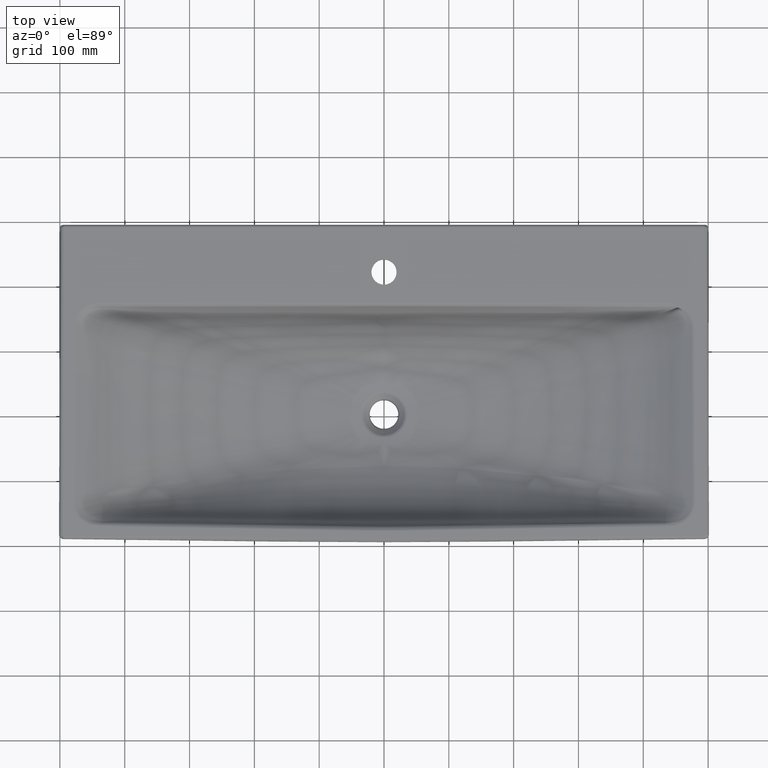
[diagram: clean part render]
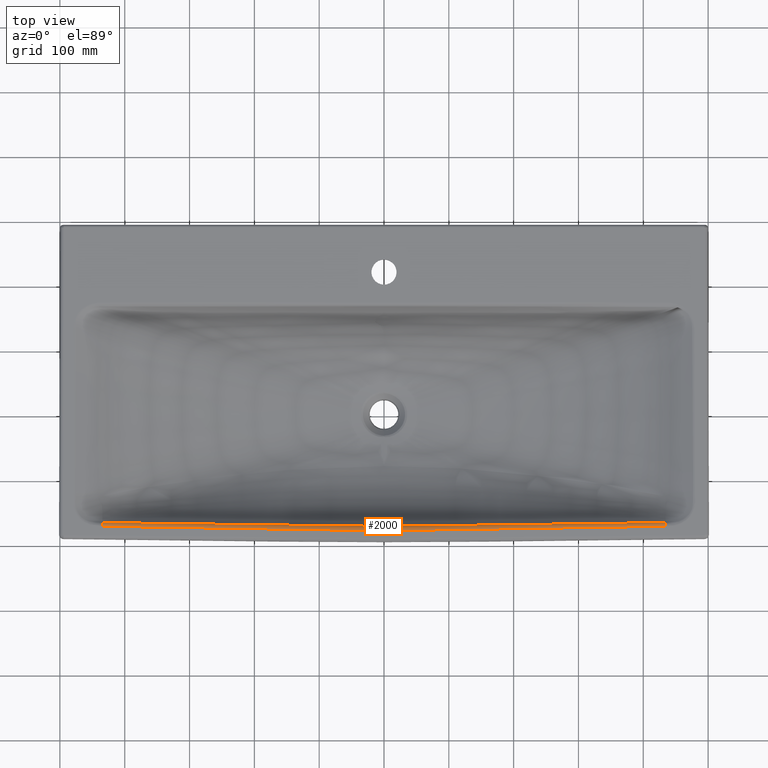
[diagram: same view with one face highlighted and labeled with its STEP entity id]
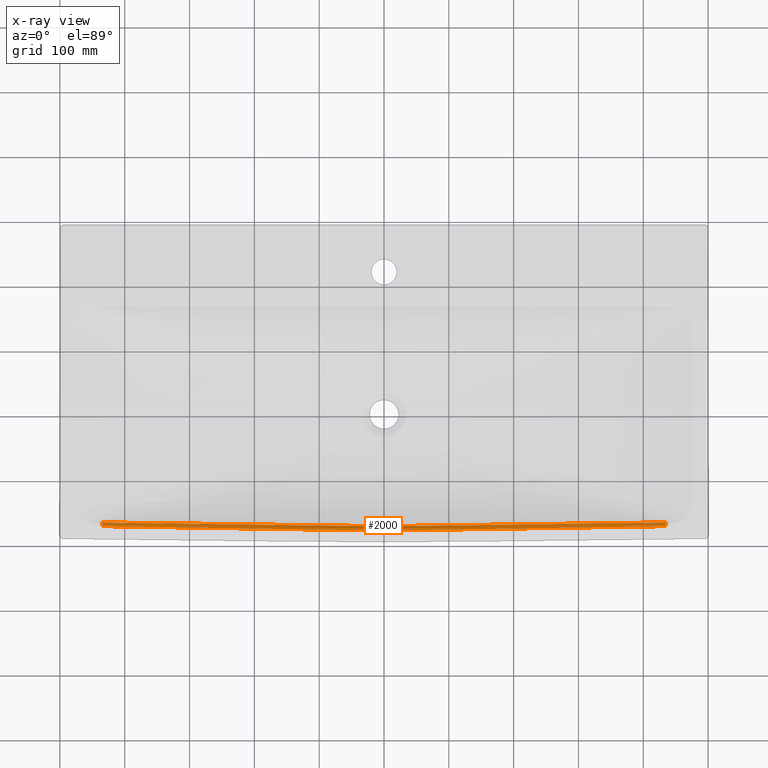
[diagram: x-ray of the same camera — body ghosted, the highlighted face saturated]
A machine part, top view. The second image highlights one B-rep face of the part: STEP entity #2000.
The next image is the same camera in x-ray: the body ghosted, the highlighted face saturated — about 0% of this face is hidden behind the body in this view.
In plain terms, the highlighted face is a freeform B-spline surface patch.
Its self-contained STEP definition (entity closure, byte-faithful):
#609=(
BOUNDED_SURFACE()
B_SPLINE_SURFACE(3,2,((#56130,#56131,#56132),(#56133,#56134,#56135),(#56136,
#56137,#56138),(#56139,#56140,#56141),(#56142,#56143,#56144),(#56145,#56146,
#56147),(#56148,#56149,#56150),(#56151,#56152,#56153),(#56154,#56155,#56156),
(#56157,#56158,#56159),(#56160,#56161,#56162),(#56163,#56164,#56165),(#56166,
#56167,#56168),(#56169,#56170,#56171),(#56172,#56173,#56174),(#56175,#56176,
#56177),(#56178,#56179,#56180),(#56181,#56182,#56183),(#56184,#56185,#56186),
(#56187,#56188,#56189),(#56190,#56191,#56192),(#56193,#56194,#56195),(#56196,
#56197,#56198),(#56199,#56200,#56201),(#56202,#56203,#56204),(#56205,#56206,
#56207),(#56208,#56209,#56210),(#56211,#56212,#56213),(#56214,#56215,#56216),
(#56217,#56218,#56219),(#56220,#56221,#56222),(#56223,#56224,#56225),(#56226,
#56227,#56228),(#56229,#56230,#56231),(#56232,#56233,#56234),(#56235,#56236,
#56237),(#56238,#56239,#56240),(#56241,#56242,#56243),(#56244,#56245,#56246),
(#56247,#56248,#56249),(#56250,#56251,#56252),(#56253,#56254,#56255),(#56256,
#56257,#56258),(#56259,#56260,#56261),(#56262,#56263,#56264),(#56265,#56266,
#56267),(#56268,#56269,#56270),(#56271,#56272,#56273)),.UNSPECIFIED.,.F.,
 .F.,.F.)
B_SPLINE_SURFACE_WITH_KNOTS((4,2,2,2,2,2,2,2,2,2,2,2,2,2,2,2,2,2,2,2,2,
2,2,4),(3,3),(0.,0.03125,0.0625,0.125,0.1875,0.25,0.28125,0.3125,0.34375,
0.375,0.4375,0.46875,0.5,0.53125,0.5625,0.625,0.65625,0.6875,0.75,0.8125,
0.875,0.9375,0.96875,1.),(0.,1.),.UNSPECIFIED.)
GEOMETRIC_REPRESENTATION_ITEM()
RATIONAL_B_SPLINE_SURFACE(((1.,0.890432301567966,1.),(1.,0.880643005815677,
1.),(1.,0.875322452073118,1.),(1.,0.867250946969685,1.),(1.,0.863980801542837,
1.),(1.,0.855999468461332,1.),(1.,0.852510346992299,1.),(1.,0.847690863164674,
1.),(1.,0.846214014404986,1.),(1.,0.84554296875545,1.),(1.,0.843748316364235,
1.),(1.,0.843030582620567,1.),(1.,0.843204288387233,1.),(1.,0.843831042307123,
1.),(1.,0.843845231972711,1.),(1.,0.839134985131365,1.),(1.,0.835499646547122,
1.),(1.,0.828646259172737,1.),(1.,0.825962380188353,1.),(1.,0.818402745898579,
1.),(1.,0.814198471873288,1.),(1.,0.809547982457156,1.),(1.,0.80826528384827,
1.),(1.,0.806259457350265,1.),(1.,0.805066805108781,1.),(1.,0.805257263600571,
1.),(1.,0.806709001156034,1.),(1.,0.809135673789895,1.),(1.,0.810536060372827,
1.),(1.,0.81547135018499,1.),(1.,0.819743282569626,1.),(1.,0.826352528856699,
1.),(1.,0.828553552767957,1.),(1.,0.834241698010787,1.),(1.,0.83769170209422,
1.),(1.,0.842333210878162,1.),(1.,0.838331590312536,1.),(1.,0.838673165525766,
1.),(1.,0.84090957042753,1.),(1.,0.843097485170497,1.),(1.,0.84569650019002,
1.),(1.,0.85239558074894,1.),(1.,0.856592571289294,1.),(1.,0.864738128316028,
1.),(1.,0.867925457529748,1.),(1.,0.875671706290045,1.),(1.,0.880759766489022,
1.),(1.,0.890439859369877,1.)))
REPRESENTATION_ITEM('')
SURFACE()
);
#1030=FACE_OUTER_BOUND('',#2828,.T.);
#1244=B_SPLINE_CURVE_WITH_KNOTS('',3,(#9133,#9134,#9135,#9136,#9137,#9138,
#9139,#9140,#9141,#9142,#9143,#9144,#9145,#9146,#9147,#9148,#9149,#9150,
#9151,#9152,#9153,#9154,#9155,#9156,#9157,#9158),.UNSPECIFIED.,.F.,.F.,
(4,2,2,2,2,2,2,2,2,2,2,2,4),(0.,0.0624999999999999,0.125,0.25,0.3125,0.375,
0.5,0.625,0.6875,0.75,0.875,0.9375,1.),.UNSPECIFIED.);
#1487=B_SPLINE_CURVE_WITH_KNOTS('',3,(#48400,#48401,#48402,#48403,#48404,
#48405,#48406,#48407,#48408,#48409,#48410,#48411,#48412,#48413,#48414,#48415,
#48416,#48417,#48418,#48419,#48420,#48421,#48422,#48423,#48424,#48425),
 .UNSPECIFIED.,.F.,.F.,(4,2,2,2,2,2,2,2,2,2,2,2,4),(0.,0.0625,0.125,0.25,
0.3125,0.375,0.5,0.625,0.6875,0.75,0.875,0.9375,1.),.UNSPECIFIED.);
#1667=B_SPLINE_CURVE_WITH_KNOTS('',3,(#55641,#55642,#55643,#55644),
 .UNSPECIFIED.,.F.,.F.,(4,4),(0.,1.),.UNSPECIFIED.);
#1668=B_SPLINE_CURVE_WITH_KNOTS('',3,(#55892,#55893,#55894,#55895),
 .UNSPECIFIED.,.F.,.F.,(4,4),(0.,1.),.UNSPECIFIED.);
#2000=ADVANCED_FACE('',(#1030),#609,.T.);
#2828=EDGE_LOOP('',(#4305,#4306,#4307,#4308));
#4305=ORIENTED_EDGE('',*,*,#6404,.T.);
#4306=ORIENTED_EDGE('',*,*,#5666,.F.);
#4307=ORIENTED_EDGE('',*,*,#6406,.T.);
#4308=ORIENTED_EDGE('',*,*,#6177,.F.);
#5071=VERTEX_POINT('',#9132);
#5072=VERTEX_POINT('',#9159);
#5219=VERTEX_POINT('',#26377);
#5385=VERTEX_POINT('',#44786);
#5666=EDGE_CURVE('',#5071,#5072,#1244,.T.);
#6177=EDGE_CURVE('',#5219,#5385,#1487,.T.);
#6404=EDGE_CURVE('',#5219,#5072,#1667,.T.);
#6406=EDGE_CURVE('',#5071,#5385,#1668,.T.);
#9132=CARTESIAN_POINT('',(434.528710219105,-471.904825191904,-16.0541201455834));
#9133=CARTESIAN_POINT('',(434.528817333827,-471.90752077263,-16.0541436695592));
#9134=CARTESIAN_POINT('',(416.432216537064,-472.626573526337,-16.0604187478754));
#9135=CARTESIAN_POINT('',(398.329550251289,-473.110219972374,-16.0646394664681));
#9136=CARTESIAN_POINT('',(362.124615117848,-474.092937744055,-16.0732155145372));
#9137=CARTESIAN_POINT('',(344.021195345363,-474.547340789625,-16.0771810298399));
#9138=CARTESIAN_POINT('',(289.707329226355,-475.770567175636,-16.0878559647887));
#9139=CARTESIAN_POINT('',(253.492865349968,-476.409239010318,-16.0934295694514));
#9140=CARTESIAN_POINT('',(199.168364870047,-477.059373183349,-16.0991032044257));
#9141=CARTESIAN_POINT('',(181.058743652037,-477.162058657307,-16.0999993269812));
#9142=CARTESIAN_POINT('',(144.842241317263,-477.582256620695,-16.1036663390536));
#9143=CARTESIAN_POINT('',(126.734565131629,-477.850132238873,-16.1060040541575));
#9144=CARTESIAN_POINT('',(72.4100361368272,-478.412473152689,-16.1109115289657));
#9145=CARTESIAN_POINT('',(36.1938388307759,-478.725594349676,-16.1136440962545));
#9146=CARTESIAN_POINT('',(-36.2370466774056,-478.751790380723,-16.1138727055541));
#9147=CARTESIAN_POINT('',(-72.4517543853825,-478.472621083912,-16.1114364320088));
#9148=CARTESIAN_POINT('',(-126.773306994642,-477.851498557035,-16.1060159778349));
#9149=CARTESIAN_POINT('',(-144.880267383602,-477.555465266748,-16.10343253445));
#9150=CARTESIAN_POINT('',(-181.094389092517,-477.043292396567,-16.0989628695259));
#9151=CARTESIAN_POINT('',(-199.202033239065,-476.913838846917,-16.0978331455131));
#9152=CARTESIAN_POINT('',(-253.521418921853,-476.224170744785,-16.0918145031663));
#9153=CARTESIAN_POINT('',(-289.732433585355,-475.655107288818,-16.0868483616218));
#9154=CARTESIAN_POINT('',(-344.044375081304,-474.539308957812,-16.077110937106));
#9155=CARTESIAN_POINT('',(-362.147540118526,-474.120696432908,-16.0734577609456));
#9156=CARTESIAN_POINT('',(-398.351879176899,-473.169498943612,-16.0651567862136));
#9157=CARTESIAN_POINT('',(-416.453974088863,-472.682298319997,-16.0609050507835));
#9158=CARTESIAN_POINT('',(-434.546574275883,-471.90672991941,-16.0541367678888));
#9159=CARTESIAN_POINT('',(-434.546453686631,-471.903917005705,-16.0541122199625));
#26377=CARTESIAN_POINT('',(-434.301531818038,-466.212619066801,-18.9012445321361));
#44786=CARTESIAN_POINT('',(434.301464109585,-466.212719037474,-18.9011527198859));
#48400=CARTESIAN_POINT('',(-434.30163398697,-466.213395619796,-18.9044384212594));
#48401=CARTESIAN_POINT('',(-416.213669920986,-466.644717848089,-19.3781816661315));
#48402=CARTESIAN_POINT('',(-398.120961177486,-467.087606194827,-19.4982144004464));
#48403=CARTESIAN_POINT('',(-361.934547224774,-467.894009832791,-19.7616890168593));
#48404=CARTESIAN_POINT('',(-343.840789528597,-468.27002100259,-19.84807868842));
#48405=CARTESIAN_POINT('',(-289.557696967412,-469.297855955043,-20.0288916332319));
#48406=CARTESIAN_POINT('',(-253.366680068602,-469.855941252943,-20.0585212206063));
#48407=CARTESIAN_POINT('',(-199.077465855656,-470.528906943952,-20.0980694539664));
#48408=CARTESIAN_POINT('',(-180.98013363582,-470.695605605244,-20.0194654638976));
#48409=CARTESIAN_POINT('',(-144.78634008999,-471.104153631742,-20.2447617264195));
#48410=CARTESIAN_POINT('',(-126.689557277306,-471.317149570914,-20.4401488597416));
#48411=CARTESIAN_POINT('',(-72.3986275013112,-471.802034882288,-20.7929822646835));
#48412=CARTESIAN_POINT('',(-36.2044193442446,-472.021451109137,-20.9882913930776));
#48413=CARTESIAN_POINT('',(36.1853967139591,-472.000348528976,-20.9701629980359));
#48414=CARTESIAN_POINT('',(72.3810177701146,-471.758856995444,-20.7471157818353));
#48415=CARTESIAN_POINT('',(126.674580075038,-471.316548692243,-20.438288199429));
#48416=CARTESIAN_POINT('',(144.772138932855,-471.124760650761,-20.2596143473593));
#48417=CARTESIAN_POINT('',(180.967829833661,-470.771063476024,-20.1112781307589));
#48418=CARTESIAN_POINT('',(199.066419188652,-470.625635930716,-20.2038571338095));
#48419=CARTESIAN_POINT('',(253.359072626909,-469.98155190322,-20.1864120072865));
#48420=CARTESIAN_POINT('',(289.552506608212,-469.378665431525,-20.0992627443645));
#48421=CARTESIAN_POINT('',(343.836736108198,-468.275990597106,-19.8508374260377));
#48422=CARTESIAN_POINT('',(361.930574180944,-467.873468423269,-19.747183021794));
#48423=CARTESIAN_POINT('',(398.117155974174,-467.039477823858,-19.4778913295234));
#48424=CARTESIAN_POINT('',(416.210039279983,-466.593345522242,-19.3708097063963));
#48425=CARTESIAN_POINT('',(434.301562270419,-466.213587362016,-18.9042522861384));
#55641=CARTESIAN_POINT('',(-434.303626780626,-466.213348100248,-18.9043862266441));
#55642=CARTESIAN_POINT('',(-434.358942961647,-467.51927079436,-17.1285552603139));
#55643=CARTESIAN_POINT('',(-434.452178321269,-469.703825153065,-16.0349123092369));
#55644=CARTESIAN_POINT('',(-434.546616537486,-471.906728107798,-16.0541367520788));
#55892=CARTESIAN_POINT('',(434.528866073243,-471.907518836011,-16.0541436526594));
#55893=CARTESIAN_POINT('',(434.441320695483,-469.704408765542,-16.0349174023459));
#55894=CARTESIAN_POINT('',(434.35489022705,-467.519646790622,-17.1284758137434));
#55895=CARTESIAN_POINT('',(434.303609096236,-466.213544397709,-18.9041994998262));
#56130=CARTESIAN_POINT('',(-434.546616537486,-471.906728107798,-16.0541367520786));
#56131=CARTESIAN_POINT('',(-434.393382177627,-468.332323193955,-16.0229433929648));
#56132=CARTESIAN_POINT('',(-434.303626780626,-466.213348100248,-18.9043862266445));
#56133=CARTESIAN_POINT('',(-425.500242354017,-472.294515678381,-16.057520922938));
#56134=CARTESIAN_POINT('',(-425.255045125011,-468.539350915116,-16.0247500969739));
#56135=CARTESIAN_POINT('',(-425.275780245789,-466.428622289101,-19.1408461478233));
#56136=CARTESIAN_POINT('',(-416.451499824519,-472.604760926657,-16.0602283922024));
#56137=CARTESIAN_POINT('',(-416.286277159697,-468.740686257676,-16.0265071273151));
#56138=CARTESIAN_POINT('',(-416.262289568281,-466.652626832021,-19.2819860516827));
#56139=CARTESIAN_POINT('',(-398.351509778992,-473.152530060268,-16.0650087010113));
#56140=CARTESIAN_POINT('',(-398.194378260312,-469.136491477797,-16.0299612593408));
#56141=CARTESIAN_POINT('',(-398.178528793416,-467.078801860169,-19.4826253769868));
#56142=CARTESIAN_POINT('',(-389.300831954585,-473.407297280182,-16.0672320208569));
#56143=CARTESIAN_POINT('',(-389.160199350282,-469.329945391882,-16.0316495082782));
#56144=CARTESIAN_POINT('',(-389.132508451964,-467.287876376611,-19.5635833413592));
#56145=CARTESIAN_POINT('',(-362.147574816148,-474.120695620107,-16.0734577538515));
#56146=CARTESIAN_POINT('',(-361.935307497974,-469.8964911007,-16.0365936829477));
#56147=CARTESIAN_POINT('',(-362.001487949979,-467.892587436394,-19.761353479402));
#56148=CARTESIAN_POINT('',(-344.044407884549,-474.539308220407,-16.0771109306706));
#56149=CARTESIAN_POINT('',(-343.896367533471,-470.249445161497,-16.0396738654921));
#56150=CARTESIAN_POINT('',(-343.903640326566,-468.268746047669,-19.8477810372595));
#56151=CARTESIAN_POINT('',(-307.836443095271,-475.283173979289,-16.0836025488024));
#56152=CARTESIAN_POINT('',(-307.703746067331,-470.904333423582,-16.0453889836041));
#56153=CARTESIAN_POINT('',(-307.71973194591,-468.954047564249,-19.9684832272652));
#56154=CARTESIAN_POINT('',(-289.731700721561,-475.611603197796,-16.0864687071704));
#56155=CARTESIAN_POINT('',(-289.650174460076,-471.204749196143,-16.0480106681361));
#56156=CARTESIAN_POINT('',(-289.625227012285,-469.265450453534,-20.0061453841438));
#56157=CARTESIAN_POINT('',(-253.520538174376,-476.172418289844,-16.0913628663337));
#56158=CARTESIAN_POINT('',(-253.450997502305,-471.753069273066,-16.0527957985371));
#56159=CARTESIAN_POINT('',(-253.431379441121,-469.818266257969,-20.0268637994802));
#56160=CARTESIAN_POINT('',(-235.414978453376,-476.454059799291,-16.0938207145514));
#56161=CARTESIAN_POINT('',(-235.338797545018,-472.001876698635,-16.0549670978492));
#56162=CARTESIAN_POINT('',(-235.321137918242,-470.079554568231,-20.0715909329621));
#56163=CARTESIAN_POINT('',(-208.255282766804,-476.798893947738,-16.0968300365746));
#56164=CARTESIAN_POINT('',(-208.200704877353,-472.333294823146,-16.0578593451105));
#56165=CARTESIAN_POINT('',(-208.181359471988,-470.416094521583,-20.0914753321618));
#56166=CARTESIAN_POINT('',(-199.201797151839,-476.899314908424,-16.0977063970224));
#56167=CARTESIAN_POINT('',(-199.158405693206,-472.436773340947,-16.0587623871614));
#56168=CARTESIAN_POINT('',(-199.135309358428,-470.518376646602,-20.0882676289927));
#56169=CARTESIAN_POINT('',(-181.094497664274,-477.08136620394,-16.0992951346095));
#56170=CARTESIAN_POINT('',(-181.054990652975,-472.630265951938,-16.060450970778));
#56171=CARTESIAN_POINT('',(-181.033446401543,-470.707413763516,-20.0751137824065));
#56172=CARTESIAN_POINT('',(-172.040873449447,-477.171335428564,-16.1000802841367));
#56173=CARTESIAN_POINT('',(-171.960012381716,-472.720877099062,-16.061241722835));
#56174=CARTESIAN_POINT('',(-171.961669487593,-470.797410811149,-20.0756401768181));
#56175=CARTESIAN_POINT('',(-153.933810703097,-477.427421843327,-16.1023151164214));
#56176=CARTESIAN_POINT('',(-153.83683248473,-472.891000620857,-16.0627263680208));
#56177=CARTESIAN_POINT('',(-153.83299018451,-471.002030279057,-20.1884116217533));
#56178=CARTESIAN_POINT('',(-144.880322786954,-477.572746598434,-16.1035833463461));
#56179=CARTESIAN_POINT('',(-144.767537262138,-472.970041679071,-16.0634161487713));
#56180=CARTESIAN_POINT('',(-144.774739290932,-471.108914436297,-20.2746644671417));
#56181=CARTESIAN_POINT('',(-126.773292186697,-477.841616744422,-16.105929740563));
#56182=CARTESIAN_POINT('',(-126.672991841211,-473.113790459149,-16.0646706258996));
#56183=CARTESIAN_POINT('',(-126.687002114823,-471.309555232881,-20.4360920249214));
#56184=CARTESIAN_POINT('',(-117.719723989108,-477.955018867942,-16.1069193859025));
#56185=CARTESIAN_POINT('',(-117.63372430443,-473.178173410113,-16.0652324857432));
#56186=CARTESIAN_POINT('',(-117.64008470602,-471.397973292142,-20.498961277355));
#56187=CARTESIAN_POINT('',(-90.5589448369512,-478.26558018264,-16.1096296134368));
#56188=CARTESIAN_POINT('',(-90.3988063545001,-473.351609407618,-16.066746042965));
#56189=CARTESIAN_POINT('',(-90.4938533097003,-471.640420657951,-20.6753816010858));
#56190=CARTESIAN_POINT('',(-72.4516511706594,-478.429850118136,-16.1110631754464));
#56191=CARTESIAN_POINT('',(-72.3419219383487,-473.438886463105,-16.067507698207));
#56192=CARTESIAN_POINT('',(-72.3976287293548,-471.770688033076,-20.772395699109));
#56193=CARTESIAN_POINT('',(-45.2905255342848,-478.602642882556,-16.1125711150567));
#56194=CARTESIAN_POINT('',(-45.2454320546102,-473.526832162296,-16.0682751845991));
#56195=CARTESIAN_POINT('',(-45.254154550684,-471.907299900664,-20.8792080038443));
#56196=CARTESIAN_POINT('',(-36.2367864220878,-478.648086030163,-16.1129676913972));
#56197=CARTESIAN_POINT('',(-36.2023192565942,-473.548873966778,-16.0684675422931));
#56198=CARTESIAN_POINT('',(-36.206438237359,-471.943099203426,-20.9085543021057));
#56199=CARTESIAN_POINT('',(-18.1292438538752,-478.713389503628,-16.1135375861764));
#56200=CARTESIAN_POINT('',(-18.1043121597922,-473.577637822009,-16.0687185598336));
#56201=CARTESIAN_POINT('',(-18.1114796322414,-471.993528841056,-20.9543345116543));
#56202=CARTESIAN_POINT('',(-9.0754623248788,-478.741966886441,-16.1137869772183));
#56203=CARTESIAN_POINT('',(-9.04965634635506,-473.584458372286,-16.0687780824691));
#56204=CARTESIAN_POINT('',(-9.04061828294493,-472.013479637159,-20.9814002156334));
#56205=CARTESIAN_POINT('',(9.03226095066595,-478.735417841617,-16.11372982457));
#56206=CARTESIAN_POINT('',(9.00059043965626,-473.581397646476,-16.0687513715525));
#56207=CARTESIAN_POINT('',(8.99258112565498,-472.008328374047,-20.9770612989891));
#56208=CARTESIAN_POINT('',(18.0862060948205,-478.698939487576,-16.1134114827975));
#56209=CARTESIAN_POINT('',(18.0544419003317,-473.571393277271,-16.0686640655514));
#56210=CARTESIAN_POINT('',(18.0625950722578,-471.982366556464,-20.9440918436731));
#56211=CARTESIAN_POINT('',(36.1941098127129,-478.620642395,-16.1127281944222));
#56212=CARTESIAN_POINT('',(36.1545366443932,-473.537290064128,-16.0683664500764));
#56213=CARTESIAN_POINT('',(36.1600779249388,-471.92220428682,-20.8886689593395));
#56214=CARTESIAN_POINT('',(45.2480881227543,-478.570977014825,-16.1122947712147));
#56215=CARTESIAN_POINT('',(45.1999391130687,-473.513159741761,-16.0681558691337));
#56216=CARTESIAN_POINT('',(45.208979155333,-471.883198506426,-20.8565902999479));
#56217=CARTESIAN_POINT('',(72.4101049182356,-478.389428525048,-16.1107104215468));
#56218=CARTESIAN_POINT('',(72.2958095931769,-473.421641901768,-16.067357203338));
#56219=CARTESIAN_POINT('',(72.3553049649377,-471.740546369846,-20.7431073353349));
#56220=CARTESIAN_POINT('',(90.5182251914775,-478.225026061401,-16.1092757029832));
#56221=CARTESIAN_POINT('',(90.3744551919846,-473.335287976513,-16.0666036098507));
#56222=CARTESIAN_POINT('',(90.4558412367957,-471.611595906992,-20.6443011637553));
#56223=CARTESIAN_POINT('',(117.680492534092,-477.94385555751,-16.1068219651691));
#56224=CARTESIAN_POINT('',(117.604892826024,-473.174001837188,-16.0651960800563));
#56225=CARTESIAN_POINT('',(117.610217620358,-471.390398784018,-20.4898488047503));
#56226=CARTESIAN_POINT('',(126.73467936212,-477.845095531914,-16.105960099482));
#56227=CARTESIAN_POINT('',(126.64889161479,-473.115416555275,-16.0646848142613));
#56228=CARTESIAN_POINT('',(126.659591113983,-471.31221475621,-20.4382150257547));
#56229=CARTESIAN_POINT('',(144.842631167876,-477.611377345594,-16.1039204717697));
#56230=CARTESIAN_POINT('',(144.745746237875,-472.985511506533,-16.063551154259));
#56231=CARTESIAN_POINT('',(144.75076668934,-471.134679035367,-20.3042455642002));
#56232=CARTESIAN_POINT('',(153.896386263043,-477.477206874283,-16.1027495838052));
#56233=CARTESIAN_POINT('',(153.819589228169,-472.91416654649,-16.0629285332275));
#56234=CARTESIAN_POINT('',(153.81205525037,-471.036421628942,-20.222550794675));
#56235=CARTESIAN_POINT('',(181.058765863048,-477.162058461443,-16.0999993252718));
#56236=CARTESIAN_POINT('',(180.954449475195,-472.684019633104,-16.0609200742712));
#56237=CARTESIAN_POINT('',(181.005056409512,-470.770705182104,-20.1111584039038));
#56238=CARTESIAN_POINT('',(199.168388977962,-477.059372971677,-16.0991032025786));
#56239=CARTESIAN_POINT('',(199.123279369459,-472.507712639462,-16.0593814620422));
#56240=CARTESIAN_POINT('',(199.110171990082,-470.625188406305,-20.2039137921124));
#56241=CARTESIAN_POINT('',(235.384726422244,-476.625949990604,-16.0953207775253));
#56242=CARTESIAN_POINT('',(235.31358883087,-472.080842454131,-16.0556562275473));
#56243=CARTESIAN_POINT('',(235.289845122766,-470.195838904348,-20.1921470907981));
#56244=CARTESIAN_POINT('',(253.491938880837,-476.334266166037,-16.0927752913512));
#56245=CARTESIAN_POINT('',(253.401182737439,-471.830375246283,-16.0534704322017));
#56246=CARTESIAN_POINT('',(253.396915152191,-469.928238013215,-20.1372389364191));
#56247=CARTESIAN_POINT('',(289.706065143914,-475.727484123269,-16.0874799846861));
#56248=CARTESIAN_POINT('',(289.599513998183,-471.263905487312,-16.0485269226091));
#56249=CARTESIAN_POINT('',(289.588004720102,-469.34602483088,-20.0805735789163));
#56250=CARTESIAN_POINT('',(307.811986749931,-475.362824321102,-16.0842976468043));
#56251=CARTESIAN_POINT('',(307.649481854661,-470.947974913318,-16.045769840965));
#56252=CARTESIAN_POINT('',(307.682152085298,-469.010442056921,-20.016334164512));
#56253=CARTESIAN_POINT('',(344.021234620779,-474.547339831801,-16.0771810214808));
#56254=CARTESIAN_POINT('',(343.844793464807,-470.255960121851,-16.0397307168635));
#56255=CARTESIAN_POINT('',(343.868263683684,-468.275306223563,-19.8506534852539));
#56256=CARTESIAN_POINT('',(362.124656288622,-474.092936708959,-16.073215505504));
#56257=CARTESIAN_POINT('',(361.903592767763,-469.87998242753,-16.036449612996));
#56258=CARTESIAN_POINT('',(361.968713321611,-467.872612504585,-19.7469746943577));
#56259=CARTESIAN_POINT('',(389.278360480346,-473.355898179451,-16.0667834677003));
#56260=CARTESIAN_POINT('',(389.135590601882,-469.292736102798,-16.0313247881994));
#56261=CARTESIAN_POINT('',(389.107359232736,-467.247114651219,-19.5449021694125));
#56262=CARTESIAN_POINT('',(398.329288269325,-473.098306045126,-16.0645354952004));
#56263=CARTESIAN_POINT('',(398.174352729111,-469.094837068656,-16.0295977492384));
#56264=CARTESIAN_POINT('',(398.156728519019,-467.034406347297,-19.4658337865372));
#56265=CARTESIAN_POINT('',(416.43062125602,-472.562839530783,-16.0598625497233));
#56266=CARTESIAN_POINT('',(416.272538118827,-468.705164882018,-16.0261971345705));
#56267=CARTESIAN_POINT('',(416.249592201857,-466.616019905396,-19.2730866628336));
#56268=CARTESIAN_POINT('',(425.480460293924,-472.267049573277,-16.05728122987));
#56269=CARTESIAN_POINT('',(425.244306786132,-468.513940749003,-16.024528340022));
#56270=CARTESIAN_POINT('',(425.268196503161,-466.403201825319,-19.1372225531059));
#56271=CARTESIAN_POINT('',(434.528866073243,-471.907518836011,-16.0541436526591));
#56272=CARTESIAN_POINT('',(434.386816782025,-468.332798708088,-16.0229475427138));
#56273=CARTESIAN_POINT('',(434.303609096236,-466.213544397709,-18.904199499825));